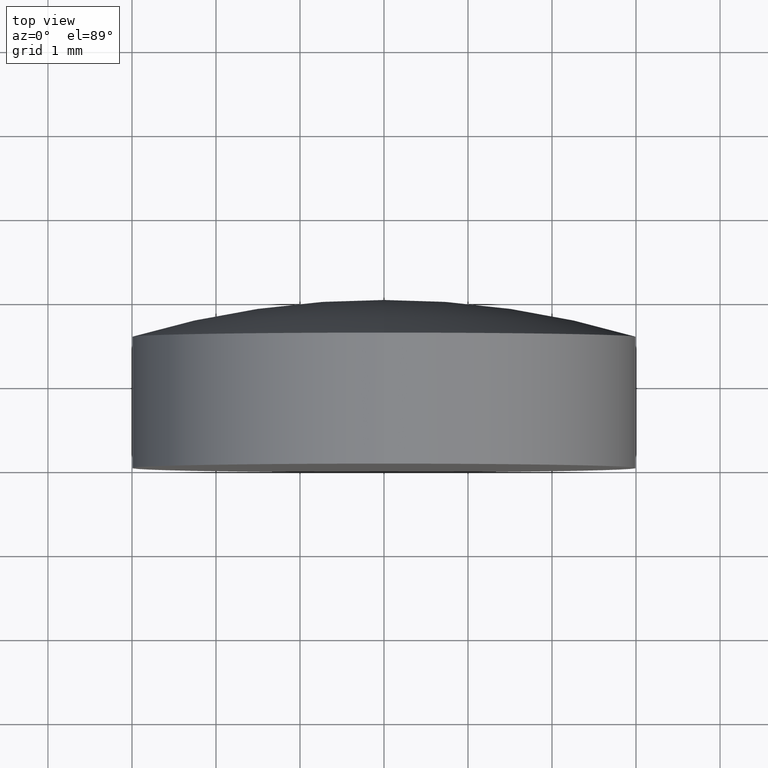
[diagram: clean part render]
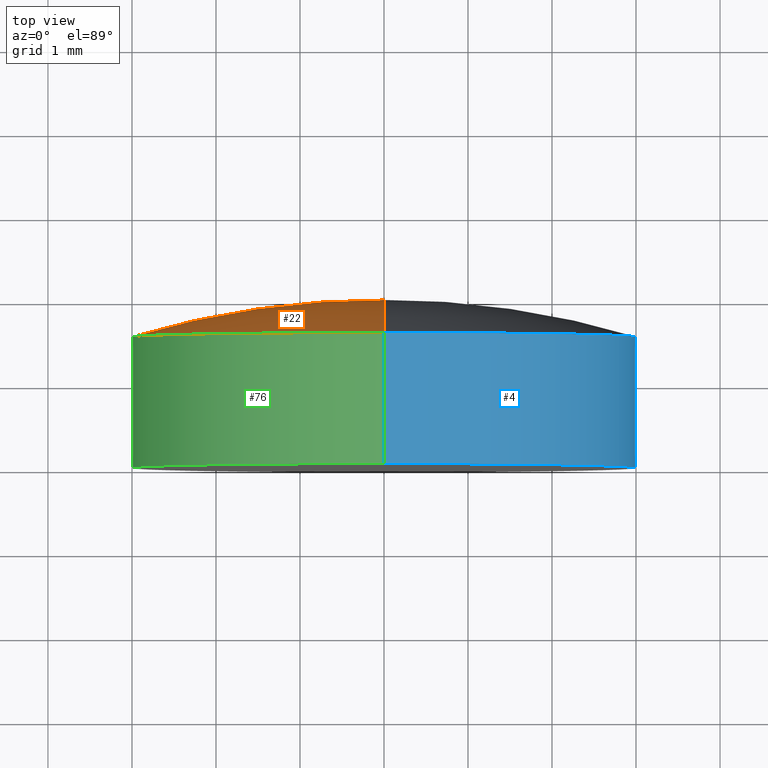
[diagram: same view with three faces highlighted in distinct colors, each labeled with its STEP entity id]
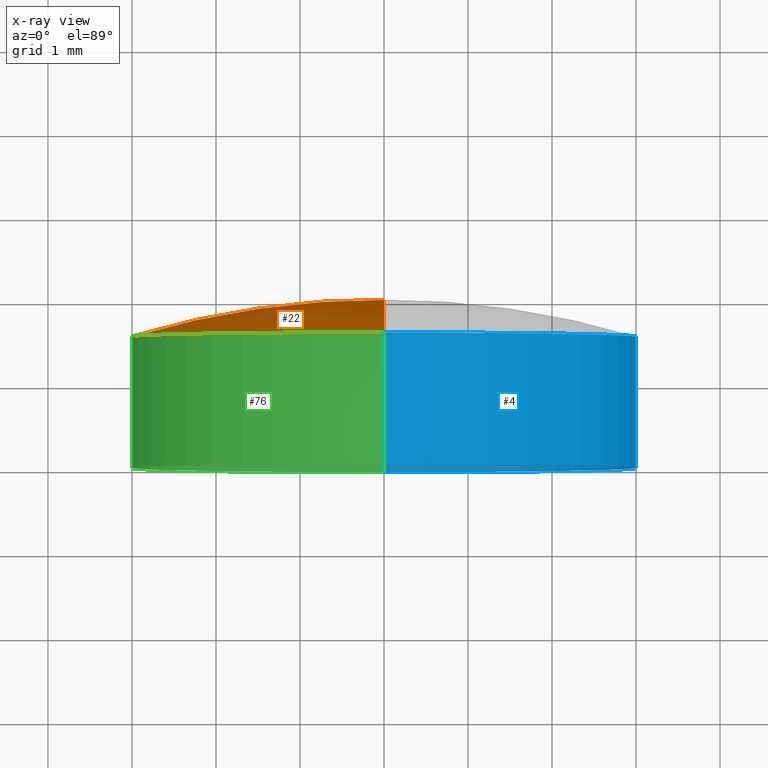
[diagram: x-ray of the same camera — body ghosted, the three highlighted faces saturated]
A machine part, top view with three faces highlighted in distinct colors.
The next image is the same camera in x-ray (body ghosted, the three faces saturated) — at least one of them is partly hidden behind the body in this view.
Their STEP definitions:

[orange] entity #22 — the highlighted toroidal blend (fillet) surface has major radius 0.0128 mm and minor (blend) radius 10.36 mm.
#11 = AXIS2_PLACEMENT_3D ( 'NONE', #133, #115, #183 ) ;
#18 = CARTESIAN_POINT ( 'NONE',  ( 0.000000000000000000, 1.559999999999999387, 2.999999999999999112 ) ) ;
#21 = CIRCLE ( 'NONE', #77, 3.000000000000000000 ) ;
#22 = ADVANCED_FACE ( 'NONE', ( #134 ), #174, .T. ) ;
#26 = AXIS2_PLACEMENT_3D ( 'NONE', #88, #78, #172 ) ;
#28 = ORIENTED_EDGE ( 'NONE', *, *, #70, .T. ) ;
#29 = CIRCLE ( 'NONE', #11, 10.35999999999999766 ) ;
#43 = EDGE_CURVE ( 'NONE', #117, #165, #194, .T. ) ;
#52 = DIRECTION ( 'NONE',  ( -0.000000000000000000, 1.000000000000000000, -0.000000000000000000 ) ) ;
#53 = DIRECTION ( 'NONE',  ( -1.000000000000000000, 0.000000000000000000, 0.000000000000000000 ) ) ;
#68 = CARTESIAN_POINT ( 'NONE',  ( 0.000000000000000000, 2.000000000000000000, 0.000000000000000000 ) ) ;
#70 = EDGE_CURVE ( 'NONE', #98, #117, #21, .T. ) ;
#77 = AXIS2_PLACEMENT_3D ( 'NONE', #118, #52, #104 ) ;
#78 = DIRECTION ( 'NONE',  ( -0.000000000000000000, 1.000000000000000000, -0.000000000000000000 ) ) ;
#79 = EDGE_LOOP ( 'NONE', ( #120, #28, #196 ) ) ;
#88 = CARTESIAN_POINT ( 'NONE',  ( 0.000000000000000000, -8.359992091227860911, 0.000000000000000000 ) ) ;
#98 = VERTEX_POINT ( 'NONE', #157 ) ;
#104 = DIRECTION ( 'NONE',  ( 0.000000000000000000, 0.000000000000000000, 1.000000000000000000 ) ) ;
#106 = DIRECTION ( 'NONE',  ( 0.000000000000000000, 0.000000000000000000, 1.000000000000000000 ) ) ;
#115 = DIRECTION ( 'NONE',  ( 1.000000000000000000, 0.000000000000000000, 1.224646799147353207E-16 ) ) ;
#117 = VERTEX_POINT ( 'NONE', #18 ) ;
#118 = CARTESIAN_POINT ( 'NONE',  ( 0.000000000000000000, 1.559999999999999609, 0.000000000000000000 ) ) ;
#120 = ORIENTED_EDGE ( 'NONE', *, *, #125, .F. ) ;
#125 = EDGE_CURVE ( 'NONE', #98, #165, #29, .T. ) ;
#132 = AXIS2_PLACEMENT_3D ( 'NONE', #188, #53, #106 ) ;
#133 = CARTESIAN_POINT ( 'NONE',  ( 1.567689956211541805E-18, -8.359992091227860911, -0.01280115995324552884 ) ) ;
#134 = FACE_OUTER_BOUND ( 'NONE', #79, .T. ) ;
#157 = CARTESIAN_POINT ( 'NONE',  ( 3.673940397442058882E-16, 1.559999999999999387, -2.999999999999999112 ) ) ;
#165 = VERTEX_POINT ( 'NONE', #68 ) ;
#172 = DIRECTION ( 'NONE',  ( 0.000000000000000000, 0.000000000000000000, 1.000000000000000000 ) ) ;
#174 = TOROIDAL_SURFACE ( 'NONE', #26, 0.01280115995324552884, 10.35999999999999766 ) ;
#183 = DIRECTION ( 'NONE',  ( 1.224646799147353207E-16, 0.000000000000000000, -1.000000000000000000 ) ) ;
#188 = CARTESIAN_POINT ( 'NONE',  ( 0.000000000000000000, -8.359992091227860911, 0.01280115995324552884 ) ) ;
#194 = CIRCLE ( 'NONE', #132, 10.35999999999999766 ) ;
#196 = ORIENTED_EDGE ( 'NONE', *, *, #43, .T. ) ;

[blue] entity #4 — the highlighted cylindrical surface (partial cylindrical patch) has radius 3 mm, axis along (-0, 1, -0).
#1 = AXIS2_PLACEMENT_3D ( 'NONE', #73, #138, #66 ) ;
#4 = ADVANCED_FACE ( 'NONE', ( #153 ), #74, .T. ) ;
#5 = EDGE_CURVE ( 'NONE', #136, #117, #99, .T. ) ;
#9 = ORIENTED_EDGE ( 'NONE', *, *, #46, .F. ) ;
#18 = CARTESIAN_POINT ( 'NONE',  ( 0.000000000000000000, 1.559999999999999387, 2.999999999999999112 ) ) ;
#32 = DIRECTION ( 'NONE',  ( 0.000000000000000000, 0.000000000000000000, 1.000000000000000000 ) ) ;
#36 = EDGE_LOOP ( 'NONE', ( #63, #147, #9, #149 ) ) ;
#45 = AXIS2_PLACEMENT_3D ( 'NONE', #89, #155, #32 ) ;
#46 = EDGE_CURVE ( 'NONE', #117, #98, #177, .T. ) ;
#47 = CARTESIAN_POINT ( 'NONE',  ( 0.000000000000000000, -4.336808689942017736E-16, 3.000000000000000000 ) ) ;
#50 = CARTESIAN_POINT ( 'NONE',  ( 3.673940397442059868E-16, 2.000000000000000000, -3.000000000000000000 ) ) ;
#58 = EDGE_CURVE ( 'NONE', #137, #98, #197, .T. ) ;
#62 = DIRECTION ( 'NONE',  ( -0.000000000000000000, 1.000000000000000000, -0.000000000000000000 ) ) ;
#63 = ORIENTED_EDGE ( 'NONE', *, *, #124, .T. ) ;
#65 = DIRECTION ( 'NONE',  ( 0.000000000000000000, 0.000000000000000000, 1.000000000000000000 ) ) ;
#66 = DIRECTION ( 'NONE',  ( 0.000000000000000000, 0.000000000000000000, 1.000000000000000000 ) ) ;
#73 = CARTESIAN_POINT ( 'NONE',  ( 0.000000000000000000, -4.336808689942017736E-16, 0.000000000000000000 ) ) ;
#74 = CYLINDRICAL_SURFACE ( 'NONE', #45, 3.000000000000000000 ) ;
#83 = CARTESIAN_POINT ( 'NONE',  ( 3.673940397442059868E-16, -4.336808689942017736E-16, -3.000000000000000000 ) ) ;
#87 = AXIS2_PLACEMENT_3D ( 'NONE', #200, #62, #65 ) ;
#89 = CARTESIAN_POINT ( 'NONE',  ( 0.000000000000000000, 2.000000000000000000, 0.000000000000000000 ) ) ;
#98 = VERTEX_POINT ( 'NONE', #157 ) ;
#99 = LINE ( 'NONE', #184, #156 ) ;
#117 = VERTEX_POINT ( 'NONE', #18 ) ;
#124 = EDGE_CURVE ( 'NONE', #136, #137, #169, .T. ) ;
#136 = VERTEX_POINT ( 'NONE', #47 ) ;
#137 = VERTEX_POINT ( 'NONE', #83 ) ;
#138 = DIRECTION ( 'NONE',  ( -0.000000000000000000, 1.000000000000000000, -0.000000000000000000 ) ) ;
#147 = ORIENTED_EDGE ( 'NONE', *, *, #58, .T. ) ;
#149 = ORIENTED_EDGE ( 'NONE', *, *, #5, .F. ) ;
#150 = DIRECTION ( 'NONE',  ( -0.000000000000000000, 1.000000000000000000, -0.000000000000000000 ) ) ;
#153 = FACE_OUTER_BOUND ( 'NONE', #36, .T. ) ;
#155 = DIRECTION ( 'NONE',  ( -0.000000000000000000, 1.000000000000000000, -0.000000000000000000 ) ) ;
#156 = VECTOR ( 'NONE', #201, 1000.000000000000000 ) ;
#157 = CARTESIAN_POINT ( 'NONE',  ( 3.673940397442058882E-16, 1.559999999999999387, -2.999999999999999112 ) ) ;
#164 = VECTOR ( 'NONE', #150, 1000.000000000000000 ) ;
#169 = CIRCLE ( 'NONE', #1, 3.000000000000000000 ) ;
#177 = CIRCLE ( 'NONE', #87, 3.000000000000000000 ) ;
#184 = CARTESIAN_POINT ( 'NONE',  ( 0.000000000000000000, 2.000000000000000000, 3.000000000000000000 ) ) ;
#197 = LINE ( 'NONE', #50, #164 ) ;
#200 = CARTESIAN_POINT ( 'NONE',  ( 0.000000000000000000, 1.559999999999999609, 0.000000000000000000 ) ) ;
#201 = DIRECTION ( 'NONE',  ( -0.000000000000000000, 1.000000000000000000, -0.000000000000000000 ) ) ;

[green] entity #76 — the highlighted cylindrical surface (partial cylindrical patch) has radius 3 mm, axis along (-0, 1, -0).
#5 = EDGE_CURVE ( 'NONE', #136, #117, #99, .T. ) ;
#8 = EDGE_CURVE ( 'NONE', #137, #136, #131, .T. ) ;
#10 = ORIENTED_EDGE ( 'NONE', *, *, #70, .F. ) ;
#18 = CARTESIAN_POINT ( 'NONE',  ( 0.000000000000000000, 1.559999999999999387, 2.999999999999999112 ) ) ;
#21 = CIRCLE ( 'NONE', #77, 3.000000000000000000 ) ;
#34 = ORIENTED_EDGE ( 'NONE', *, *, #58, .F. ) ;
#35 = DIRECTION ( 'NONE',  ( -0.000000000000000000, 1.000000000000000000, -0.000000000000000000 ) ) ;
#41 = ORIENTED_EDGE ( 'NONE', *, *, #5, .T. ) ;
#47 = CARTESIAN_POINT ( 'NONE',  ( 0.000000000000000000, -4.336808689942017736E-16, 3.000000000000000000 ) ) ;
#50 = CARTESIAN_POINT ( 'NONE',  ( 3.673940397442059868E-16, 2.000000000000000000, -3.000000000000000000 ) ) ;
#51 = FACE_OUTER_BOUND ( 'NONE', #129, .T. ) ;
#52 = DIRECTION ( 'NONE',  ( -0.000000000000000000, 1.000000000000000000, -0.000000000000000000 ) ) ;
#58 = EDGE_CURVE ( 'NONE', #137, #98, #197, .T. ) ;
#70 = EDGE_CURVE ( 'NONE', #98, #117, #21, .T. ) ;
#76 = ADVANCED_FACE ( 'NONE', ( #51 ), #186, .T. ) ;
#77 = AXIS2_PLACEMENT_3D ( 'NONE', #118, #52, #104 ) ;
#83 = CARTESIAN_POINT ( 'NONE',  ( 3.673940397442059868E-16, -4.336808689942017736E-16, -3.000000000000000000 ) ) ;
#90 = DIRECTION ( 'NONE',  ( 0.000000000000000000, 0.000000000000000000, 1.000000000000000000 ) ) ;
#91 = DIRECTION ( 'NONE',  ( 0.000000000000000000, 0.000000000000000000, 1.000000000000000000 ) ) ;
#98 = VERTEX_POINT ( 'NONE', #157 ) ;
#99 = LINE ( 'NONE', #184, #156 ) ;
#104 = DIRECTION ( 'NONE',  ( 0.000000000000000000, 0.000000000000000000, 1.000000000000000000 ) ) ;
#117 = VERTEX_POINT ( 'NONE', #18 ) ;
#118 = CARTESIAN_POINT ( 'NONE',  ( 0.000000000000000000, 1.559999999999999609, 0.000000000000000000 ) ) ;
#121 = AXIS2_PLACEMENT_3D ( 'NONE', #173, #35, #91 ) ;
#129 = EDGE_LOOP ( 'NONE', ( #34, #198, #41, #10 ) ) ;
#131 = CIRCLE ( 'NONE', #160, 3.000000000000000000 ) ;
#136 = VERTEX_POINT ( 'NONE', #47 ) ;
#137 = VERTEX_POINT ( 'NONE', #83 ) ;
#150 = DIRECTION ( 'NONE',  ( -0.000000000000000000, 1.000000000000000000, -0.000000000000000000 ) ) ;
#154 = CARTESIAN_POINT ( 'NONE',  ( 0.000000000000000000, -4.336808689942017736E-16, 0.000000000000000000 ) ) ;
#156 = VECTOR ( 'NONE', #201, 1000.000000000000000 ) ;
#157 = CARTESIAN_POINT ( 'NONE',  ( 3.673940397442058882E-16, 1.559999999999999387, -2.999999999999999112 ) ) ;
#160 = AXIS2_PLACEMENT_3D ( 'NONE', #154, #168, #90 ) ;
#164 = VECTOR ( 'NONE', #150, 1000.000000000000000 ) ;
#168 = DIRECTION ( 'NONE',  ( -0.000000000000000000, 1.000000000000000000, -0.000000000000000000 ) ) ;
#173 = CARTESIAN_POINT ( 'NONE',  ( 0.000000000000000000, 2.000000000000000000, 0.000000000000000000 ) ) ;
#184 = CARTESIAN_POINT ( 'NONE',  ( 0.000000000000000000, 2.000000000000000000, 3.000000000000000000 ) ) ;
#186 = CYLINDRICAL_SURFACE ( 'NONE', #121, 3.000000000000000000 ) ;
#197 = LINE ( 'NONE', #50, #164 ) ;
#198 = ORIENTED_EDGE ( 'NONE', *, *, #8, .T. ) ;
#201 = DIRECTION ( 'NONE',  ( -0.000000000000000000, 1.000000000000000000, -0.000000000000000000 ) ) ;